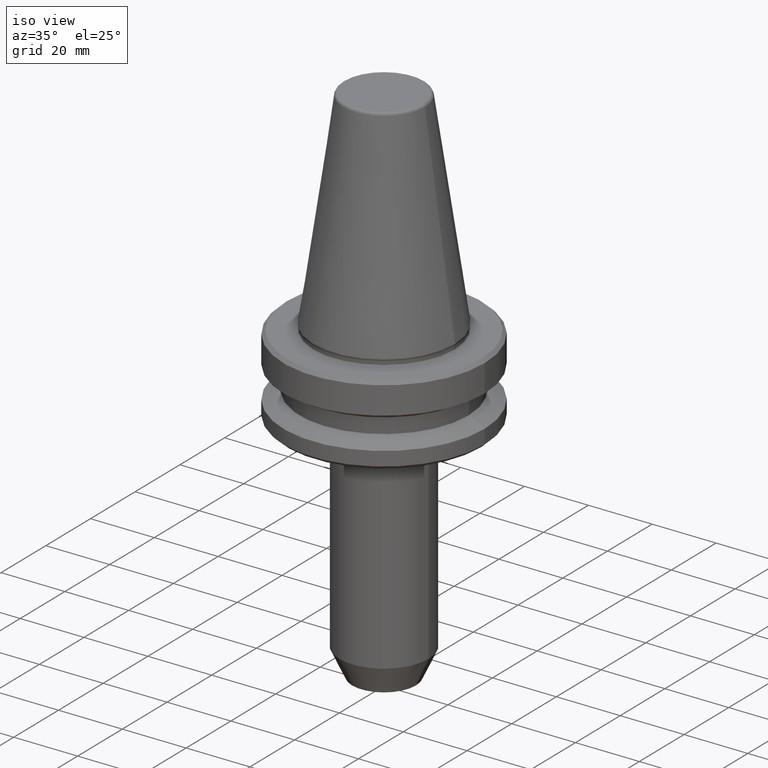
[diagram: clean part render]
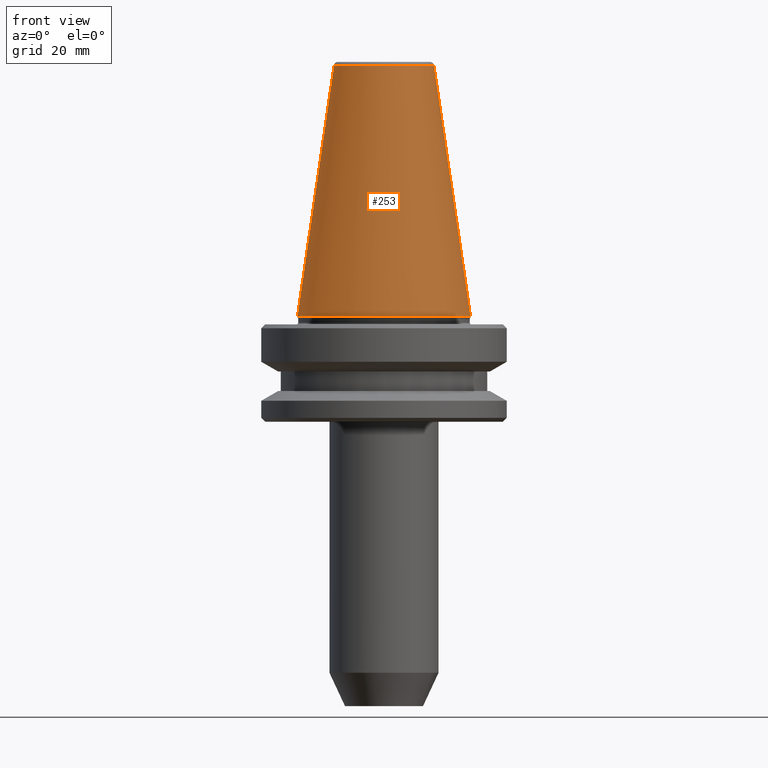
[diagram: tour spotlight — one face highlighted and labeled with its STEP entity id]
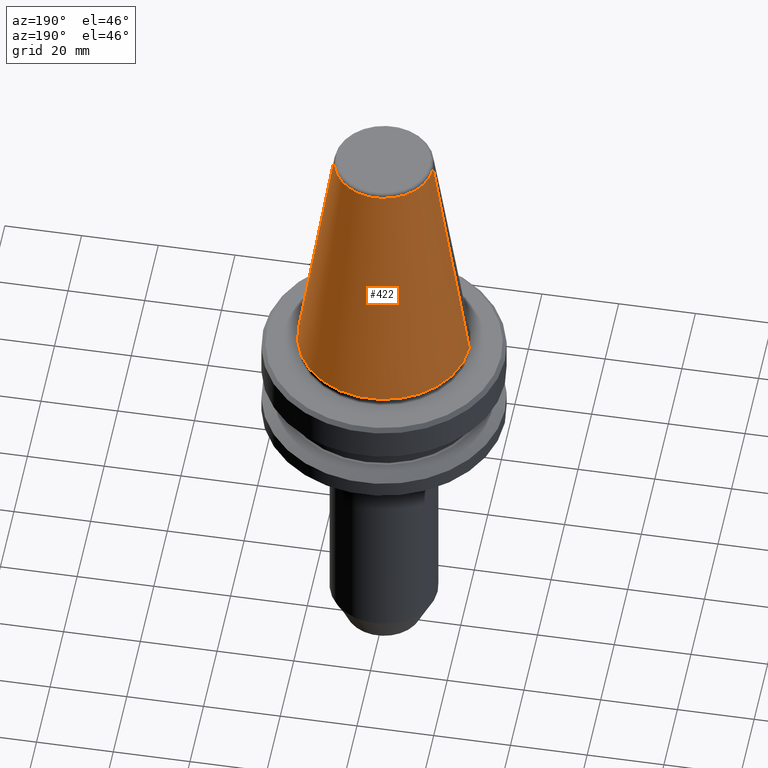
[diagram: tour spotlight — one face highlighted and labeled with its STEP entity id]
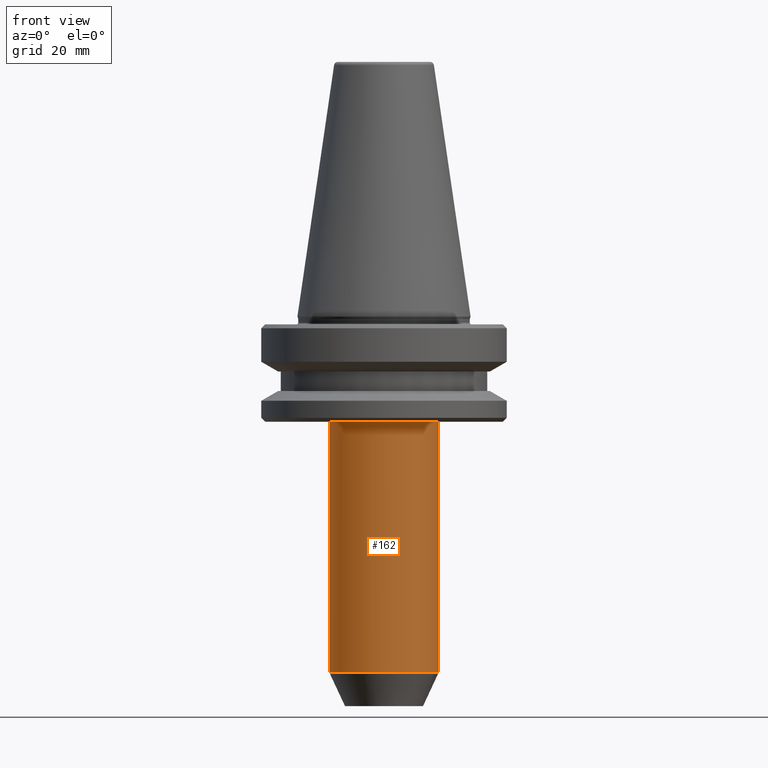
[diagram: tour spotlight — one face highlighted and labeled with its STEP entity id]
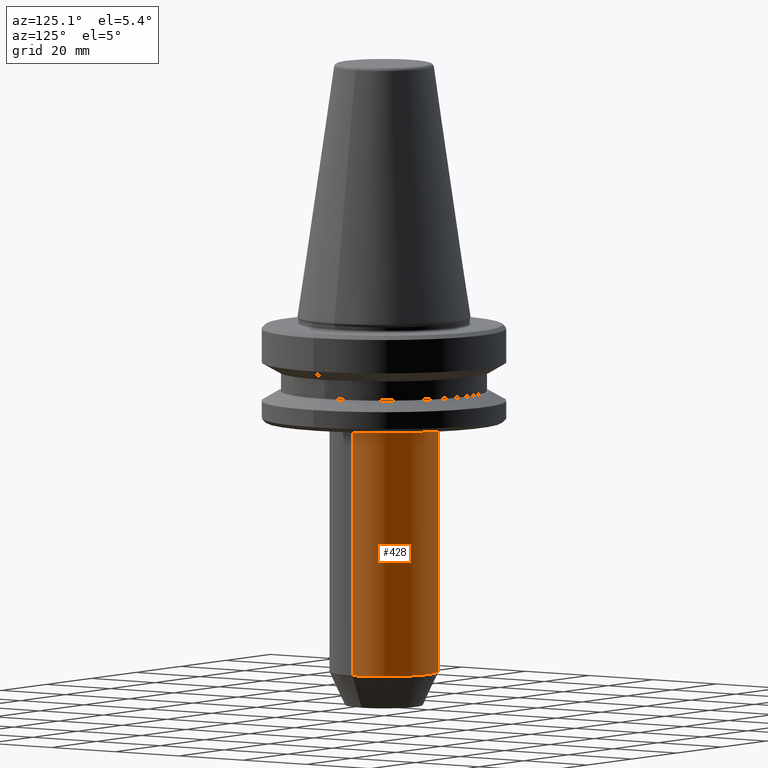
[diagram: tour spotlight — one face highlighted and labeled with its STEP entity id]
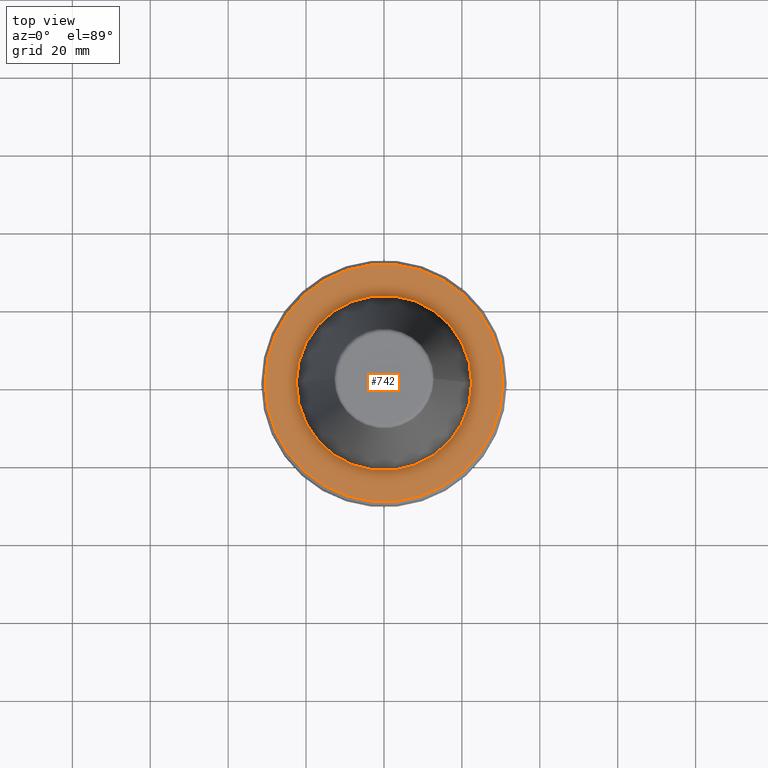
[diagram: tour spotlight — one face highlighted and labeled with its STEP entity id]
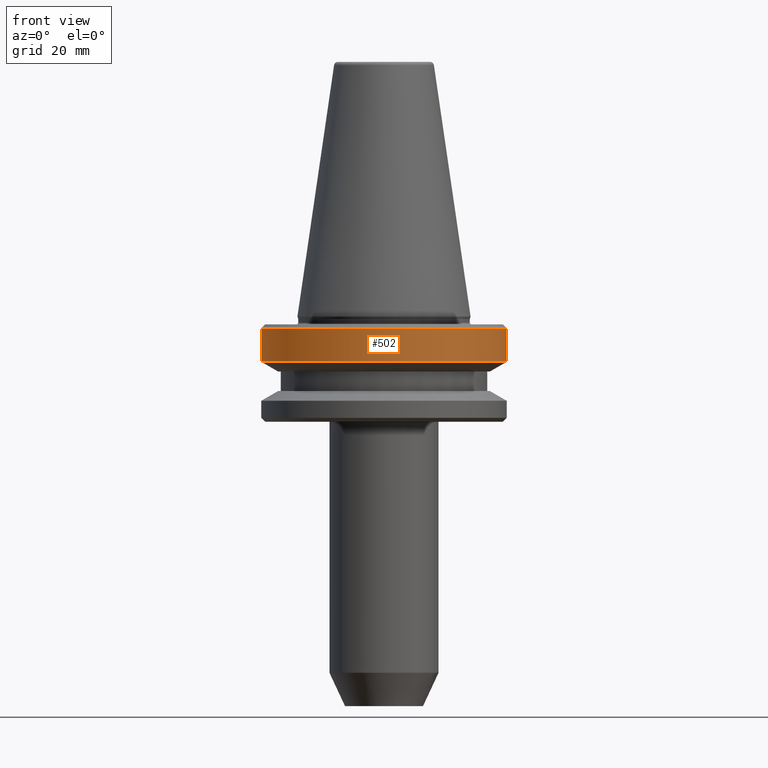
[diagram: tour spotlight — one face highlighted and labeled with its STEP entity id]
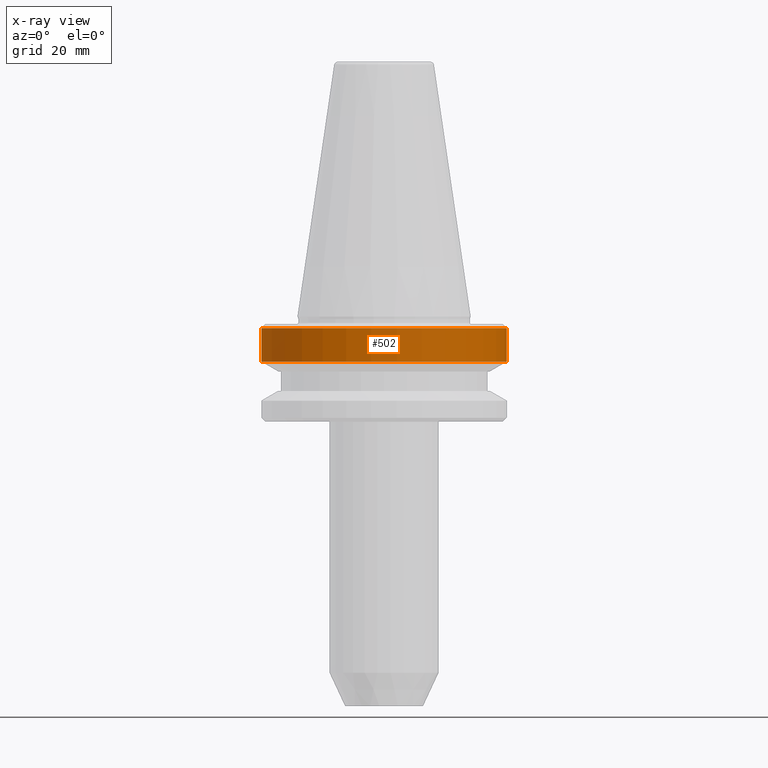
[diagram: x-ray of the same camera — body ghosted, this tour face saturated]
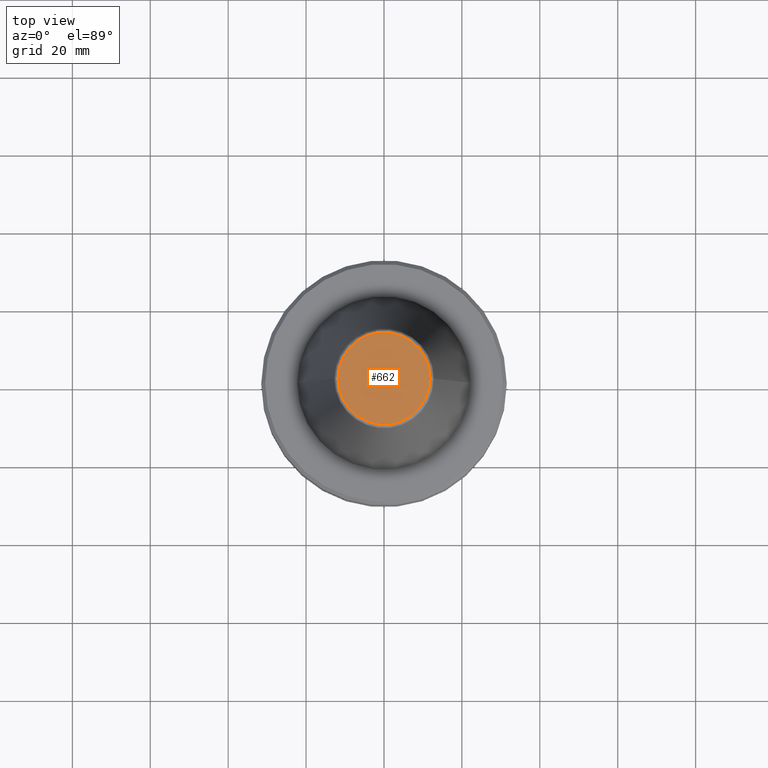
[diagram: tour spotlight — one face highlighted and labeled with its STEP entity id]
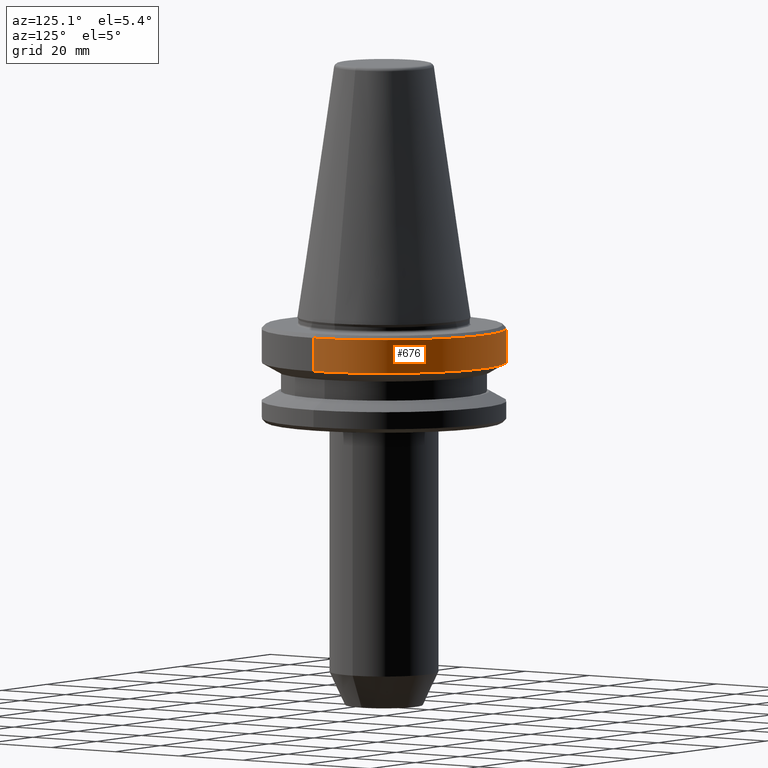
[diagram: tour spotlight — one face highlighted and labeled with its STEP entity id]
A machine part: a face-by-face anatomy tour. The part has 36 B-rep faces; the first image is the clean iso view, then the 8 largest visible faces are spotlighted one at a time (largest first), each with its STEP entity span.

Face 1 — front view, entity #253. In plain terms, the highlighted conical surface has half-angle 8.297 deg.
Definition (entity closure, byte-faithful):
#11 = CARTESIAN_POINT ( 'NONE',  ( 12.81220206925720200, 0.0000000000000000000, 64.54430818888890500 ) ) ;
#17 = DIRECTION ( 'NONE',  ( -0.0000000000000000000, -0.0000000000000000000, 1.000000000000000000 ) ) ;
#70 = EDGE_CURVE ( 'NONE', #557, #765, #914, .T. ) ;
#77 = EDGE_LOOP ( 'NONE', ( #892, #856, #655, #340 ) ) ;
#174 = DIRECTION ( 'NONE',  ( 0.1443081888881783400, 1.767265616126592900E-017, -0.9895327920891828800 ) ) ;
#253 = ADVANCED_FACE ( 'NONE', ( #863 ), #639, .T. ) ;
#257 = EDGE_CURVE ( 'NONE', #444, #557, #962, .T. ) ;
#300 = AXIS2_PLACEMENT_3D ( 'NONE', #466, #985, #709 ) ;
#319 = AXIS2_PLACEMENT_3D ( 'NONE', #710, #17, #956 ) ;
#340 = ORIENTED_EDGE ( 'NONE', *, *, #713, .T. ) ;
#352 = VERTEX_POINT ( 'NONE', #704 ) ;
#381 = DIRECTION ( 'NONE',  ( 1.000000000000000000, 0.0000000000000000000, 0.0000000000000000000 ) ) ;
#394 = CARTESIAN_POINT ( 'NONE',  ( -22.22499999999977400, 0.0000000000000000000, 0.0000000000000000000 ) ) ;
#421 = LINE ( 'NONE', #394, #593 ) ;
#444 = VERTEX_POINT ( 'NONE', #760 ) ;
#466 = CARTESIAN_POINT ( 'NONE',  ( 0.0000000000000000000, 0.0000000000000000000, 0.0000000000000000000 ) ) ;
#494 = DIRECTION ( 'NONE',  ( -0.1443081888881783400, 0.0000000000000000000, -0.9895327920891828800 ) ) ;
#557 = VERTEX_POINT ( 'NONE', #11 ) ;
#593 = VECTOR ( 'NONE', #494, 999.9999999999998900 ) ;
#639 = CONICAL_SURFACE ( 'NONE', #300, 22.22499999999977400, 0.1448138077623185600 ) ;
#655 = ORIENTED_EDGE ( 'NONE', *, *, #756, .T. ) ;
#702 = CARTESIAN_POINT ( 'NONE',  ( 0.0000000000000000000, 0.0000000000000000000, 64.54430818888890500 ) ) ;
#704 = CARTESIAN_POINT ( 'NONE',  ( -22.22499999999977400, 2.721777511104964800E-015, 0.0000000000000000000 ) ) ;
#709 = DIRECTION ( 'NONE',  ( -1.000000000000000000, 0.0000000000000000000, 0.0000000000000000000 ) ) ;
#710 = CARTESIAN_POINT ( 'NONE',  ( 0.0000000000000000000, 0.0000000000000000000, 0.0000000000000000000 ) ) ;
#713 = EDGE_CURVE ( 'NONE', #352, #765, #849, .T. ) ;
#716 = CARTESIAN_POINT ( 'NONE',  ( 22.22499999999977400, 2.721777511104964800E-015, 0.0000000000000000000 ) ) ;
#756 = EDGE_CURVE ( 'NONE', #444, #352, #421, .T. ) ;
#760 = CARTESIAN_POINT ( 'NONE',  ( -12.81220206925720200, 1.569042225414492900E-015, 64.54430818888890500 ) ) ;
#765 = VERTEX_POINT ( 'NONE', #771 ) ;
#771 = CARTESIAN_POINT ( 'NONE',  ( 22.22499999999977400, 0.0000000000000000000, 0.0000000000000000000 ) ) ;
#787 = DIRECTION ( 'NONE',  ( -0.0000000000000000000, -0.0000000000000000000, 1.000000000000000000 ) ) ;
#827 = AXIS2_PLACEMENT_3D ( 'NONE', #702, #787, #381 ) ;
#849 = CIRCLE ( 'NONE', #319, 22.22499999999977400 ) ;
#856 = ORIENTED_EDGE ( 'NONE', *, *, #257, .F. ) ;
#863 = FACE_OUTER_BOUND ( 'NONE', #77, .T. ) ;
#879 = VECTOR ( 'NONE', #174, 999.9999999999998900 ) ;
#892 = ORIENTED_EDGE ( 'NONE', *, *, #70, .F. ) ;
#914 = LINE ( 'NONE', #716, #879 ) ;
#956 = DIRECTION ( 'NONE',  ( 1.000000000000000000, 0.0000000000000000000, 0.0000000000000000000 ) ) ;
#962 = CIRCLE ( 'NONE', #827, 12.81220206925720500 ) ;
#985 = DIRECTION ( 'NONE',  ( 0.0000000000000000000, 0.0000000000000000000, -1.000000000000000000 ) ) ;

Face 2 — auxiliary view, entity #422. In plain terms, the highlighted conical surface has half-angle 8.297 deg.
Definition (entity closure, byte-faithful):
#11 = CARTESIAN_POINT ( 'NONE',  ( 12.81220206925720200, 0.0000000000000000000, 64.54430818888890500 ) ) ;
#70 = EDGE_CURVE ( 'NONE', #557, #765, #914, .T. ) ;
#97 = EDGE_CURVE ( 'NONE', #765, #352, #814, .T. ) ;
#105 = ORIENTED_EDGE ( 'NONE', *, *, #70, .T. ) ;
#174 = DIRECTION ( 'NONE',  ( 0.1443081888881783400, 1.767265616126592900E-017, -0.9895327920891828800 ) ) ;
#216 = DIRECTION ( 'NONE',  ( 0.0000000000000000000, 0.0000000000000000000, -1.000000000000000000 ) ) ;
#265 = DIRECTION ( 'NONE',  ( 1.000000000000000000, 0.0000000000000000000, 0.0000000000000000000 ) ) ;
#310 = DIRECTION ( 'NONE',  ( 1.000000000000000000, 0.0000000000000000000, 0.0000000000000000000 ) ) ;
#320 = AXIS2_PLACEMENT_3D ( 'NONE', #621, #806, #265 ) ;
#339 = CARTESIAN_POINT ( 'NONE',  ( 0.0000000000000000000, 0.0000000000000000000, 64.54430818888890500 ) ) ;
#352 = VERTEX_POINT ( 'NONE', #704 ) ;
#390 = DIRECTION ( 'NONE',  ( -1.000000000000000000, 0.0000000000000000000, 0.0000000000000000000 ) ) ;
#394 = CARTESIAN_POINT ( 'NONE',  ( -22.22499999999977400, 0.0000000000000000000, 0.0000000000000000000 ) ) ;
#421 = LINE ( 'NONE', #394, #593 ) ;
#422 = ADVANCED_FACE ( 'NONE', ( #511 ), #975, .T. ) ;
#444 = VERTEX_POINT ( 'NONE', #760 ) ;
#491 = CARTESIAN_POINT ( 'NONE',  ( 0.0000000000000000000, 0.0000000000000000000, 0.0000000000000000000 ) ) ;
#494 = DIRECTION ( 'NONE',  ( -0.1443081888881783400, 0.0000000000000000000, -0.9895327920891828800 ) ) ;
#511 = FACE_OUTER_BOUND ( 'NONE', #980, .T. ) ;
#539 = AXIS2_PLACEMENT_3D ( 'NONE', #339, #663, #310 ) ;
#557 = VERTEX_POINT ( 'NONE', #11 ) ;
#593 = VECTOR ( 'NONE', #494, 999.9999999999998900 ) ;
#621 = CARTESIAN_POINT ( 'NONE',  ( 0.0000000000000000000, 0.0000000000000000000, 0.0000000000000000000 ) ) ;
#645 = ORIENTED_EDGE ( 'NONE', *, *, #97, .T. ) ;
#663 = DIRECTION ( 'NONE',  ( -0.0000000000000000000, -0.0000000000000000000, 1.000000000000000000 ) ) ;
#704 = CARTESIAN_POINT ( 'NONE',  ( -22.22499999999977400, 2.721777511104964800E-015, 0.0000000000000000000 ) ) ;
#716 = CARTESIAN_POINT ( 'NONE',  ( 22.22499999999977400, 2.721777511104964800E-015, 0.0000000000000000000 ) ) ;
#756 = EDGE_CURVE ( 'NONE', #444, #352, #421, .T. ) ;
#760 = CARTESIAN_POINT ( 'NONE',  ( -12.81220206925720200, 1.569042225414492900E-015, 64.54430818888890500 ) ) ;
#765 = VERTEX_POINT ( 'NONE', #771 ) ;
#768 = EDGE_CURVE ( 'NONE', #557, #444, #979, .T. ) ;
#771 = CARTESIAN_POINT ( 'NONE',  ( 22.22499999999977400, 0.0000000000000000000, 0.0000000000000000000 ) ) ;
#806 = DIRECTION ( 'NONE',  ( -0.0000000000000000000, -0.0000000000000000000, 1.000000000000000000 ) ) ;
#809 = ORIENTED_EDGE ( 'NONE', *, *, #756, .F. ) ;
#814 = CIRCLE ( 'NONE', #320, 22.22499999999977400 ) ;
#818 = AXIS2_PLACEMENT_3D ( 'NONE', #491, #216, #390 ) ;
#819 = ORIENTED_EDGE ( 'NONE', *, *, #768, .F. ) ;
#879 = VECTOR ( 'NONE', #174, 999.9999999999998900 ) ;
#914 = LINE ( 'NONE', #716, #879 ) ;
#975 = CONICAL_SURFACE ( 'NONE', #818, 22.22499999999977400, 0.1448138077623185600 ) ;
#979 = CIRCLE ( 'NONE', #539, 12.81220206925720500 ) ;
#980 = EDGE_LOOP ( 'NONE', ( #819, #105, #645, #809 ) ) ;

Face 3 — front view, entity #162. In plain terms, the highlighted cylindrical surface (partial cylindrical patch) has radius 14 mm, axis along (-0, -0, 1).
Definition (entity closure, byte-faithful):
#20 = CARTESIAN_POINT ( 'NONE',  ( -13.99999999999840300, 1.714505518806098800E-015, -27.00000000000024500 ) ) ;
#66 = VECTOR ( 'NONE', #792, 1000.000000000000000 ) ;
#72 = CARTESIAN_POINT ( 'NONE',  ( 13.99999999999840300, 0.0000000000000000000, -91.42197231806147800 ) ) ;
#88 = ORIENTED_EDGE ( 'NONE', *, *, #366, .F. ) ;
#107 = LINE ( 'NONE', #681, #66 ) ;
#119 = EDGE_CURVE ( 'NONE', #392, #644, #496, .T. ) ;
#159 = CIRCLE ( 'NONE', #936, 13.99999999999840300 ) ;
#162 = ADVANCED_FACE ( 'NONE', ( #798 ), #378, .T. ) ;
#214 = DIRECTION ( 'NONE',  ( -0.0000000000000000000, -0.0000000000000000000, 1.000000000000000000 ) ) ;
#297 = AXIS2_PLACEMENT_3D ( 'NONE', #745, #447, #901 ) ;
#334 = EDGE_CURVE ( 'NONE', #392, #841, #446, .T. ) ;
#345 = VECTOR ( 'NONE', #489, 1000.000000000000000 ) ;
#366 = EDGE_CURVE ( 'NONE', #841, #566, #159, .T. ) ;
#378 = CYLINDRICAL_SURFACE ( 'NONE', #800, 13.99999999999840300 ) ;
#382 = CARTESIAN_POINT ( 'NONE',  ( 0.0000000000000000000, 0.0000000000000000000, 81.16727785008510000 ) ) ;
#388 = EDGE_LOOP ( 'NONE', ( #604, #484, #667, #88 ) ) ;
#389 = CARTESIAN_POINT ( 'NONE',  ( 13.99999999999840300, 0.0000000000000000000, -27.00000000000024500 ) ) ;
#392 = VERTEX_POINT ( 'NONE', #660 ) ;
#446 = LINE ( 'NONE', #720, #345 ) ;
#447 = DIRECTION ( 'NONE',  ( -0.0000000000000000000, -0.0000000000000000000, 1.000000000000000000 ) ) ;
#484 = ORIENTED_EDGE ( 'NONE', *, *, #119, .T. ) ;
#489 = DIRECTION ( 'NONE',  ( -0.0000000000000000000, -0.0000000000000000000, 1.000000000000000000 ) ) ;
#496 = CIRCLE ( 'NONE', #297, 13.99999999999840300 ) ;
#555 = CARTESIAN_POINT ( 'NONE',  ( 0.0000000000000000000, 0.0000000000000000000, -27.00000000000024500 ) ) ;
#566 = VERTEX_POINT ( 'NONE', #389 ) ;
#590 = EDGE_CURVE ( 'NONE', #644, #566, #107, .T. ) ;
#604 = ORIENTED_EDGE ( 'NONE', *, *, #334, .F. ) ;
#644 = VERTEX_POINT ( 'NONE', #72 ) ;
#646 = DIRECTION ( 'NONE',  ( -0.0000000000000000000, -0.0000000000000000000, 1.000000000000000000 ) ) ;
#660 = CARTESIAN_POINT ( 'NONE',  ( -13.99999999999840300, 1.714505518806098800E-015, -91.42197231806147800 ) ) ;
#667 = ORIENTED_EDGE ( 'NONE', *, *, #590, .T. ) ;
#681 = CARTESIAN_POINT ( 'NONE',  ( 13.99999999999840300, 0.0000000000000000000, 81.16727785008510000 ) ) ;
#720 = CARTESIAN_POINT ( 'NONE',  ( -13.99999999999840300, 1.714505518806098800E-015, 81.16727785008510000 ) ) ;
#745 = CARTESIAN_POINT ( 'NONE',  ( 0.0000000000000000000, 0.0000000000000000000, -91.42197231806147800 ) ) ;
#792 = DIRECTION ( 'NONE',  ( -0.0000000000000000000, -0.0000000000000000000, 1.000000000000000000 ) ) ;
#798 = FACE_OUTER_BOUND ( 'NONE', #388, .T. ) ;
#800 = AXIS2_PLACEMENT_3D ( 'NONE', #382, #214, #952 ) ;
#841 = VERTEX_POINT ( 'NONE', #20 ) ;
#885 = DIRECTION ( 'NONE',  ( 1.000000000000000000, 0.0000000000000000000, 0.0000000000000000000 ) ) ;
#901 = DIRECTION ( 'NONE',  ( 1.000000000000000000, 0.0000000000000000000, 0.0000000000000000000 ) ) ;
#936 = AXIS2_PLACEMENT_3D ( 'NONE', #555, #646, #885 ) ;
#952 = DIRECTION ( 'NONE',  ( 1.000000000000000000, 0.0000000000000000000, 0.0000000000000000000 ) ) ;

Face 4 — auxiliary view, entity #428. In plain terms, the highlighted cylindrical surface (partial cylindrical patch) has radius 14 mm, axis along (-0, -0, 1).
Definition (entity closure, byte-faithful):
#20 = CARTESIAN_POINT ( 'NONE',  ( -13.99999999999840300, 1.714505518806098800E-015, -27.00000000000024500 ) ) ;
#66 = VECTOR ( 'NONE', #792, 1000.000000000000000 ) ;
#72 = CARTESIAN_POINT ( 'NONE',  ( 13.99999999999840300, 0.0000000000000000000, -91.42197231806147800 ) ) ;
#107 = LINE ( 'NONE', #681, #66 ) ;
#109 = EDGE_LOOP ( 'NONE', ( #443, #933, #613, #844 ) ) ;
#123 = DIRECTION ( 'NONE',  ( -0.0000000000000000000, -0.0000000000000000000, 1.000000000000000000 ) ) ;
#131 = CARTESIAN_POINT ( 'NONE',  ( 0.0000000000000000000, 0.0000000000000000000, -91.42197231806147800 ) ) ;
#137 = CIRCLE ( 'NONE', #346, 13.99999999999840300 ) ;
#209 = DIRECTION ( 'NONE',  ( -0.0000000000000000000, -0.0000000000000000000, 1.000000000000000000 ) ) ;
#282 = CARTESIAN_POINT ( 'NONE',  ( 0.0000000000000000000, 0.0000000000000000000, 81.16727785008510000 ) ) ;
#304 = DIRECTION ( 'NONE',  ( 1.000000000000000000, 0.0000000000000000000, 0.0000000000000000000 ) ) ;
#334 = EDGE_CURVE ( 'NONE', #392, #841, #446, .T. ) ;
#345 = VECTOR ( 'NONE', #489, 1000.000000000000000 ) ;
#346 = AXIS2_PLACEMENT_3D ( 'NONE', #854, #209, #483 ) ;
#389 = CARTESIAN_POINT ( 'NONE',  ( 13.99999999999840300, 0.0000000000000000000, -27.00000000000024500 ) ) ;
#392 = VERTEX_POINT ( 'NONE', #660 ) ;
#400 = AXIS2_PLACEMENT_3D ( 'NONE', #131, #123, #304 ) ;
#423 = DIRECTION ( 'NONE',  ( 1.000000000000000000, 0.0000000000000000000, 0.0000000000000000000 ) ) ;
#428 = ADVANCED_FACE ( 'NONE', ( #672 ), #830, .T. ) ;
#443 = ORIENTED_EDGE ( 'NONE', *, *, #478, .T. ) ;
#446 = LINE ( 'NONE', #720, #345 ) ;
#478 = EDGE_CURVE ( 'NONE', #644, #392, #560, .T. ) ;
#483 = DIRECTION ( 'NONE',  ( 1.000000000000000000, 0.0000000000000000000, 0.0000000000000000000 ) ) ;
#489 = DIRECTION ( 'NONE',  ( -0.0000000000000000000, -0.0000000000000000000, 1.000000000000000000 ) ) ;
#560 = CIRCLE ( 'NONE', #400, 13.99999999999840300 ) ;
#566 = VERTEX_POINT ( 'NONE', #389 ) ;
#590 = EDGE_CURVE ( 'NONE', #644, #566, #107, .T. ) ;
#613 = ORIENTED_EDGE ( 'NONE', *, *, #836, .F. ) ;
#644 = VERTEX_POINT ( 'NONE', #72 ) ;
#660 = CARTESIAN_POINT ( 'NONE',  ( -13.99999999999840300, 1.714505518806098800E-015, -91.42197231806147800 ) ) ;
#672 = FACE_OUTER_BOUND ( 'NONE', #109, .T. ) ;
#679 = AXIS2_PLACEMENT_3D ( 'NONE', #282, #946, #423 ) ;
#681 = CARTESIAN_POINT ( 'NONE',  ( 13.99999999999840300, 0.0000000000000000000, 81.16727785008510000 ) ) ;
#720 = CARTESIAN_POINT ( 'NONE',  ( -13.99999999999840300, 1.714505518806098800E-015, 81.16727785008510000 ) ) ;
#792 = DIRECTION ( 'NONE',  ( -0.0000000000000000000, -0.0000000000000000000, 1.000000000000000000 ) ) ;
#830 = CYLINDRICAL_SURFACE ( 'NONE', #679, 13.99999999999840300 ) ;
#836 = EDGE_CURVE ( 'NONE', #566, #841, #137, .T. ) ;
#841 = VERTEX_POINT ( 'NONE', #20 ) ;
#844 = ORIENTED_EDGE ( 'NONE', *, *, #590, .F. ) ;
#854 = CARTESIAN_POINT ( 'NONE',  ( 0.0000000000000000000, 0.0000000000000000000, -27.00000000000024500 ) ) ;
#933 = ORIENTED_EDGE ( 'NONE', *, *, #334, .T. ) ;
#946 = DIRECTION ( 'NONE',  ( -0.0000000000000000000, -0.0000000000000000000, 1.000000000000000000 ) ) ;

Face 5 — top view, entity #742. In plain terms, the highlighted planar face has unit normal (0, 0, -1).
Definition (entity closure, byte-faithful):
#9 = EDGE_CURVE ( 'NONE', #559, #843, #821, .T. ) ;
#39 = ORIENTED_EDGE ( 'NONE', *, *, #9, .F. ) ;
#82 = CARTESIAN_POINT ( 'NONE',  ( -30.49999999999991500, 0.0000000000000000000, -1.999999999999779700 ) ) ;
#85 = CIRCLE ( 'NONE', #872, 30.49999999999991500 ) ;
#103 = ORIENTED_EDGE ( 'NONE', *, *, #610, .T. ) ;
#112 = EDGE_LOOP ( 'NONE', ( #219, #39 ) ) ;
#116 = DIRECTION ( 'NONE',  ( -0.0000000000000000000, -0.0000000000000000000, 1.000000000000000000 ) ) ;
#129 = CARTESIAN_POINT ( 'NONE',  ( 0.0000000000000000000, 0.0000000000000000000, -1.999999999999779700 ) ) ;
#149 = FACE_OUTER_BOUND ( 'NONE', #207, .T. ) ;
#181 = AXIS2_PLACEMENT_3D ( 'NONE', #941, #116, #616 ) ;
#186 = CARTESIAN_POINT ( 'NONE',  ( 30.49999999999991500, 3.796405077356780900E-015, -1.999999999999779700 ) ) ;
#207 = EDGE_LOOP ( 'NONE', ( #995, #103 ) ) ;
#219 = ORIENTED_EDGE ( 'NONE', *, *, #578, .F. ) ;
#278 = CARTESIAN_POINT ( 'NONE',  ( 0.0000000000000000000, 0.0000000000000000000, -1.999999999999779700 ) ) ;
#317 = CIRCLE ( 'NONE', #893, 22.49999999999990800 ) ;
#338 = CARTESIAN_POINT ( 'NONE',  ( 0.0000000000000000000, 0.0000000000000000000, -1.999999999999779700 ) ) ;
#342 = AXIS2_PLACEMENT_3D ( 'NONE', #129, #785, #871 ) ;
#426 = EDGE_CURVE ( 'NONE', #668, #855, #85, .T. ) ;
#464 = DIRECTION ( 'NONE',  ( -0.0000000000000000000, -0.0000000000000000000, 1.000000000000000000 ) ) ;
#479 = DIRECTION ( 'NONE',  ( 1.000000000000000000, 0.0000000000000000000, 0.0000000000000000000 ) ) ;
#547 = DIRECTION ( 'NONE',  ( 1.000000000000000000, 0.0000000000000000000, 0.0000000000000000000 ) ) ;
#553 = AXIS2_PLACEMENT_3D ( 'NONE', #918, #724, #715 ) ;
#559 = VERTEX_POINT ( 'NONE', #564 ) ;
#564 = CARTESIAN_POINT ( 'NONE',  ( -22.49999999999990800, 2.755455298081534100E-015, -1.999999999999793500 ) ) ;
#578 = EDGE_CURVE ( 'NONE', #843, #559, #317, .T. ) ;
#610 = EDGE_CURVE ( 'NONE', #855, #668, #659, .T. ) ;
#611 = CARTESIAN_POINT ( 'NONE',  ( 22.49999999999990800, 0.0000000000000000000, -1.999999999999793500 ) ) ;
#616 = DIRECTION ( 'NONE',  ( 1.000000000000000000, 0.0000000000000000000, 0.0000000000000000000 ) ) ;
#626 = FACE_BOUND ( 'NONE', #112, .T. ) ;
#659 = CIRCLE ( 'NONE', #181, 30.49999999999991500 ) ;
#668 = VERTEX_POINT ( 'NONE', #82 ) ;
#669 = PLANE ( 'NONE',  #553 ) ;
#715 = DIRECTION ( 'NONE',  ( -1.000000000000000000, 0.0000000000000000000, -0.0000000000000000000 ) ) ;
#724 = DIRECTION ( 'NONE',  ( 0.0000000000000000000, 0.0000000000000000000, -1.000000000000000000 ) ) ;
#742 = ADVANCED_FACE ( 'NONE', ( #626, #149 ), #669, .F. ) ;
#785 = DIRECTION ( 'NONE',  ( -0.0000000000000000000, -0.0000000000000000000, 1.000000000000000000 ) ) ;
#821 = CIRCLE ( 'NONE', #342, 22.49999999999990800 ) ;
#843 = VERTEX_POINT ( 'NONE', #611 ) ;
#855 = VERTEX_POINT ( 'NONE', #186 ) ;
#871 = DIRECTION ( 'NONE',  ( 1.000000000000000000, 0.0000000000000000000, 0.0000000000000000000 ) ) ;
#872 = AXIS2_PLACEMENT_3D ( 'NONE', #278, #943, #547 ) ;
#893 = AXIS2_PLACEMENT_3D ( 'NONE', #338, #464, #479 ) ;
#918 = CARTESIAN_POINT ( 'NONE',  ( 0.0000000000000000000, 30.49999999999991500, -1.999999999999779700 ) ) ;
#941 = CARTESIAN_POINT ( 'NONE',  ( 0.0000000000000000000, 0.0000000000000000000, -1.999999999999779700 ) ) ;
#943 = DIRECTION ( 'NONE',  ( -0.0000000000000000000, -0.0000000000000000000, 1.000000000000000000 ) ) ;
#995 = ORIENTED_EDGE ( 'NONE', *, *, #426, .T. ) ;

Face 6 — front view, entity #502. An x-ray twin of the same camera follows (body ghosted, this face saturated) — the face is partly hidden behind the body. In plain terms, the highlighted cylindrical surface (partial cylindrical patch) has radius 31.5 mm, axis along (-0, -0, 1).
Definition (entity closure, byte-faithful):
#7 = DIRECTION ( 'NONE',  ( -0.0000000000000000000, -0.0000000000000000000, 1.000000000000000000 ) ) ;
#10 = VECTOR ( 'NONE', #7, 1000.000000000000000 ) ;
#13 = CARTESIAN_POINT ( 'NONE',  ( 0.0000000000000000000, 0.0000000000000000000, -2.999999999999669600 ) ) ;
#14 = EDGE_CURVE ( 'NONE', #254, #325, #790, .T. ) ;
#179 = EDGE_LOOP ( 'NONE', ( #580, #740, #633, #293 ) ) ;
#184 = LINE ( 'NONE', #424, #10 ) ;
#203 = EDGE_CURVE ( 'NONE', #887, #325, #184, .T. ) ;
#244 = AXIS2_PLACEMENT_3D ( 'NONE', #13, #755, #387 ) ;
#254 = VERTEX_POINT ( 'NONE', #858 ) ;
#293 = ORIENTED_EDGE ( 'NONE', *, *, #14, .F. ) ;
#298 = VECTOR ( 'NONE', #328, 1000.000000000000000 ) ;
#308 = EDGE_CURVE ( 'NONE', #912, #887, #549, .T. ) ;
#325 = VERTEX_POINT ( 'NONE', #932 ) ;
#328 = DIRECTION ( 'NONE',  ( -0.0000000000000000000, -0.0000000000000000000, 1.000000000000000000 ) ) ;
#358 = LINE ( 'NONE', #643, #298 ) ;
#383 = CARTESIAN_POINT ( 'NONE',  ( 31.49999999999986100, 0.0000000000000000000, -11.59985799368334900 ) ) ;
#387 = DIRECTION ( 'NONE',  ( 1.000000000000000000, 0.0000000000000000000, 0.0000000000000000000 ) ) ;
#410 = FACE_OUTER_BOUND ( 'NONE', #179, .T. ) ;
#424 = CARTESIAN_POINT ( 'NONE',  ( 31.49999999999986100, 0.0000000000000000000, 81.16727785008510000 ) ) ;
#495 = EDGE_CURVE ( 'NONE', #912, #254, #358, .T. ) ;
#502 = ADVANCED_FACE ( 'NONE', ( #410 ), #953, .T. ) ;
#517 = AXIS2_PLACEMENT_3D ( 'NONE', #614, #990, #852 ) ;
#549 = CIRCLE ( 'NONE', #517, 31.49999999999986100 ) ;
#580 = ORIENTED_EDGE ( 'NONE', *, *, #495, .F. ) ;
#614 = CARTESIAN_POINT ( 'NONE',  ( 0.0000000000000000000, 0.0000000000000000000, -11.59985799368334900 ) ) ;
#633 = ORIENTED_EDGE ( 'NONE', *, *, #203, .T. ) ;
#643 = CARTESIAN_POINT ( 'NONE',  ( -31.49999999999986100, 3.857637417314145300E-015, 81.16727785008510000 ) ) ;
#661 = DIRECTION ( 'NONE',  ( 1.000000000000000000, 0.0000000000000000000, 0.0000000000000000000 ) ) ;
#740 = ORIENTED_EDGE ( 'NONE', *, *, #308, .T. ) ;
#755 = DIRECTION ( 'NONE',  ( -0.0000000000000000000, -0.0000000000000000000, 1.000000000000000000 ) ) ;
#790 = CIRCLE ( 'NONE', #244, 31.49999999999986100 ) ;
#847 = CARTESIAN_POINT ( 'NONE',  ( -31.49999999999986100, 3.857637417314145300E-015, -11.59985799368334900 ) ) ;
#852 = DIRECTION ( 'NONE',  ( 1.000000000000000000, 0.0000000000000000000, 0.0000000000000000000 ) ) ;
#858 = CARTESIAN_POINT ( 'NONE',  ( -31.49999999999986100, 3.857637417314145300E-015, -2.999999999999669600 ) ) ;
#887 = VERTEX_POINT ( 'NONE', #383 ) ;
#912 = VERTEX_POINT ( 'NONE', #847 ) ;
#932 = CARTESIAN_POINT ( 'NONE',  ( 31.49999999999986100, 0.0000000000000000000, -2.999999999999669600 ) ) ;
#938 = AXIS2_PLACEMENT_3D ( 'NONE', #981, #954, #661 ) ;
#953 = CYLINDRICAL_SURFACE ( 'NONE', #938, 31.49999999999986100 ) ;
#954 = DIRECTION ( 'NONE',  ( -0.0000000000000000000, -0.0000000000000000000, 1.000000000000000000 ) ) ;
#981 = CARTESIAN_POINT ( 'NONE',  ( 0.0000000000000000000, 0.0000000000000000000, 81.16727785008510000 ) ) ;
#990 = DIRECTION ( 'NONE',  ( -0.0000000000000000000, -0.0000000000000000000, 1.000000000000000000 ) ) ;

Face 7 — top view, entity #662. In plain terms, the highlighted planar face has unit normal (0, 0, -1).
Definition (entity closure, byte-faithful):
#23 = CIRCLE ( 'NONE', #653, 11.82266927716807500 ) ;
#31 = VERTEX_POINT ( 'NONE', #899 ) ;
#62 = DIRECTION ( 'NONE',  ( 0.0000000000000000000, 0.0000000000000000000, -1.000000000000000000 ) ) ;
#213 = EDGE_CURVE ( 'NONE', #540, #31, #23, .T. ) ;
#273 = CARTESIAN_POINT ( 'NONE',  ( 0.0000000000000000000, 0.0000000000000000000, 65.40000000000067400 ) ) ;
#309 = ORIENTED_EDGE ( 'NONE', *, *, #213, .T. ) ;
#321 = CARTESIAN_POINT ( 'NONE',  ( 11.82266927716807500, 0.0000000000000000000, 65.40000000000067400 ) ) ;
#331 = DIRECTION ( 'NONE',  ( 1.000000000000000000, 0.0000000000000000000, 0.0000000000000000000 ) ) ;
#384 = FACE_OUTER_BOUND ( 'NONE', #675, .T. ) ;
#456 = AXIS2_PLACEMENT_3D ( 'NONE', #273, #457, #331 ) ;
#457 = DIRECTION ( 'NONE',  ( -0.0000000000000000000, -0.0000000000000000000, 1.000000000000000000 ) ) ;
#459 = DIRECTION ( 'NONE',  ( -0.0000000000000000000, -0.0000000000000000000, 1.000000000000000000 ) ) ;
#540 = VERTEX_POINT ( 'NONE', #321 ) ;
#554 = DIRECTION ( 'NONE',  ( 1.000000000000000000, 0.0000000000000000000, 0.0000000000000000000 ) ) ;
#607 = DIRECTION ( 'NONE',  ( -1.000000000000000000, 0.0000000000000000000, -0.0000000000000000000 ) ) ;
#619 = CIRCLE ( 'NONE', #456, 11.82266927716807500 ) ;
#653 = AXIS2_PLACEMENT_3D ( 'NONE', #747, #459, #554 ) ;
#662 = ADVANCED_FACE ( 'NONE', ( #384 ), #923, .F. ) ;
#675 = EDGE_LOOP ( 'NONE', ( #309, #791 ) ) ;
#738 = EDGE_CURVE ( 'NONE', #31, #540, #619, .T. ) ;
#747 = CARTESIAN_POINT ( 'NONE',  ( 0.0000000000000000000, 0.0000000000000000000, 65.40000000000067400 ) ) ;
#769 = CARTESIAN_POINT ( 'NONE',  ( 0.0000000000000000000, 11.82266927716807500, 65.40000000000051700 ) ) ;
#791 = ORIENTED_EDGE ( 'NONE', *, *, #738, .T. ) ;
#845 = AXIS2_PLACEMENT_3D ( 'NONE', #769, #62, #607 ) ;
#899 = CARTESIAN_POINT ( 'NONE',  ( -11.82266927716807500, 1.508450817090328100E-015, 65.40000000000067400 ) ) ;
#923 = PLANE ( 'NONE',  #845 ) ;

Face 8 — auxiliary view, entity #676. In plain terms, the highlighted cylindrical surface (partial cylindrical patch) has radius 31.5 mm, axis along (-0, -0, 1).
Definition (entity closure, byte-faithful):
#7 = DIRECTION ( 'NONE',  ( -0.0000000000000000000, -0.0000000000000000000, 1.000000000000000000 ) ) ;
#10 = VECTOR ( 'NONE', #7, 1000.000000000000000 ) ;
#24 = CIRCLE ( 'NONE', #147, 31.49999999999986100 ) ;
#33 = DIRECTION ( 'NONE',  ( 1.000000000000000000, 0.0000000000000000000, 0.0000000000000000000 ) ) ;
#60 = AXIS2_PLACEMENT_3D ( 'NONE', #467, #692, #433 ) ;
#144 = DIRECTION ( 'NONE',  ( -0.0000000000000000000, -0.0000000000000000000, 1.000000000000000000 ) ) ;
#145 = DIRECTION ( 'NONE',  ( -0.0000000000000000000, -0.0000000000000000000, 1.000000000000000000 ) ) ;
#147 = AXIS2_PLACEMENT_3D ( 'NONE', #652, #145, #974 ) ;
#184 = LINE ( 'NONE', #424, #10 ) ;
#202 = ORIENTED_EDGE ( 'NONE', *, *, #495, .T. ) ;
#203 = EDGE_CURVE ( 'NONE', #887, #325, #184, .T. ) ;
#254 = VERTEX_POINT ( 'NONE', #858 ) ;
#264 = ORIENTED_EDGE ( 'NONE', *, *, #203, .F. ) ;
#291 = EDGE_CURVE ( 'NONE', #887, #912, #824, .T. ) ;
#298 = VECTOR ( 'NONE', #328, 1000.000000000000000 ) ;
#307 = EDGE_LOOP ( 'NONE', ( #977, #202, #567, #264 ) ) ;
#325 = VERTEX_POINT ( 'NONE', #932 ) ;
#328 = DIRECTION ( 'NONE',  ( -0.0000000000000000000, -0.0000000000000000000, 1.000000000000000000 ) ) ;
#358 = LINE ( 'NONE', #643, #298 ) ;
#377 = EDGE_CURVE ( 'NONE', #325, #254, #24, .T. ) ;
#383 = CARTESIAN_POINT ( 'NONE',  ( 31.49999999999986100, 0.0000000000000000000, -11.59985799368334900 ) ) ;
#424 = CARTESIAN_POINT ( 'NONE',  ( 31.49999999999986100, 0.0000000000000000000, 81.16727785008510000 ) ) ;
#433 = DIRECTION ( 'NONE',  ( 1.000000000000000000, 0.0000000000000000000, 0.0000000000000000000 ) ) ;
#467 = CARTESIAN_POINT ( 'NONE',  ( 0.0000000000000000000, 0.0000000000000000000, -11.59985799368334900 ) ) ;
#473 = CYLINDRICAL_SURFACE ( 'NONE', #801, 31.49999999999986100 ) ;
#495 = EDGE_CURVE ( 'NONE', #912, #254, #358, .T. ) ;
#567 = ORIENTED_EDGE ( 'NONE', *, *, #377, .F. ) ;
#623 = CARTESIAN_POINT ( 'NONE',  ( 0.0000000000000000000, 0.0000000000000000000, 81.16727785008510000 ) ) ;
#643 = CARTESIAN_POINT ( 'NONE',  ( -31.49999999999986100, 3.857637417314145300E-015, 81.16727785008510000 ) ) ;
#652 = CARTESIAN_POINT ( 'NONE',  ( 0.0000000000000000000, 0.0000000000000000000, -2.999999999999669600 ) ) ;
#676 = ADVANCED_FACE ( 'NONE', ( #823 ), #473, .T. ) ;
#692 = DIRECTION ( 'NONE',  ( -0.0000000000000000000, -0.0000000000000000000, 1.000000000000000000 ) ) ;
#801 = AXIS2_PLACEMENT_3D ( 'NONE', #623, #144, #33 ) ;
#823 = FACE_OUTER_BOUND ( 'NONE', #307, .T. ) ;
#824 = CIRCLE ( 'NONE', #60, 31.49999999999986100 ) ;
#847 = CARTESIAN_POINT ( 'NONE',  ( -31.49999999999986100, 3.857637417314145300E-015, -11.59985799368334900 ) ) ;
#858 = CARTESIAN_POINT ( 'NONE',  ( -31.49999999999986100, 3.857637417314145300E-015, -2.999999999999669600 ) ) ;
#887 = VERTEX_POINT ( 'NONE', #383 ) ;
#912 = VERTEX_POINT ( 'NONE', #847 ) ;
#932 = CARTESIAN_POINT ( 'NONE',  ( 31.49999999999986100, 0.0000000000000000000, -2.999999999999669600 ) ) ;
#974 = DIRECTION ( 'NONE',  ( 1.000000000000000000, 0.0000000000000000000, 0.0000000000000000000 ) ) ;
#977 = ORIENTED_EDGE ( 'NONE', *, *, #291, .T. ) ;